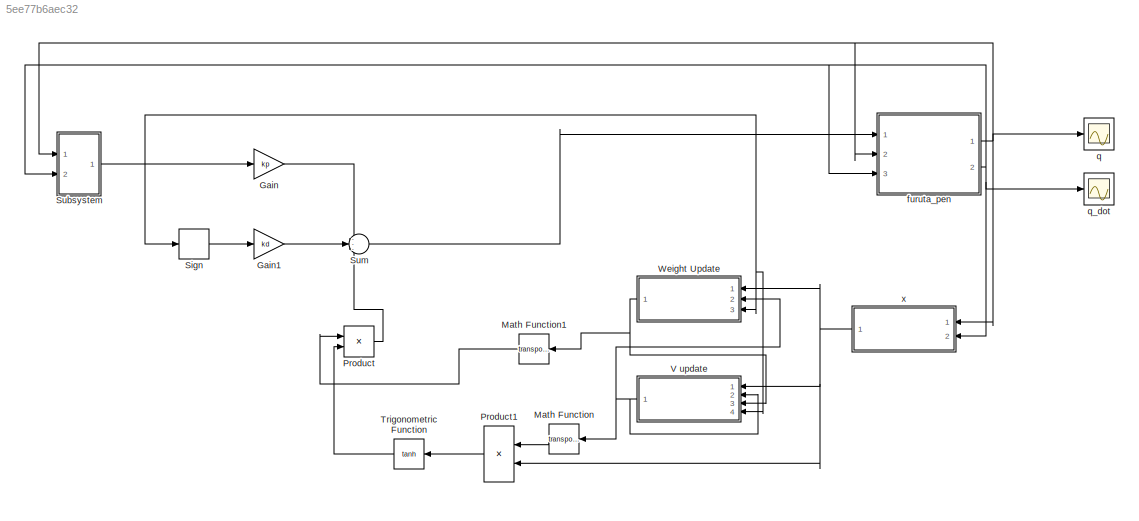
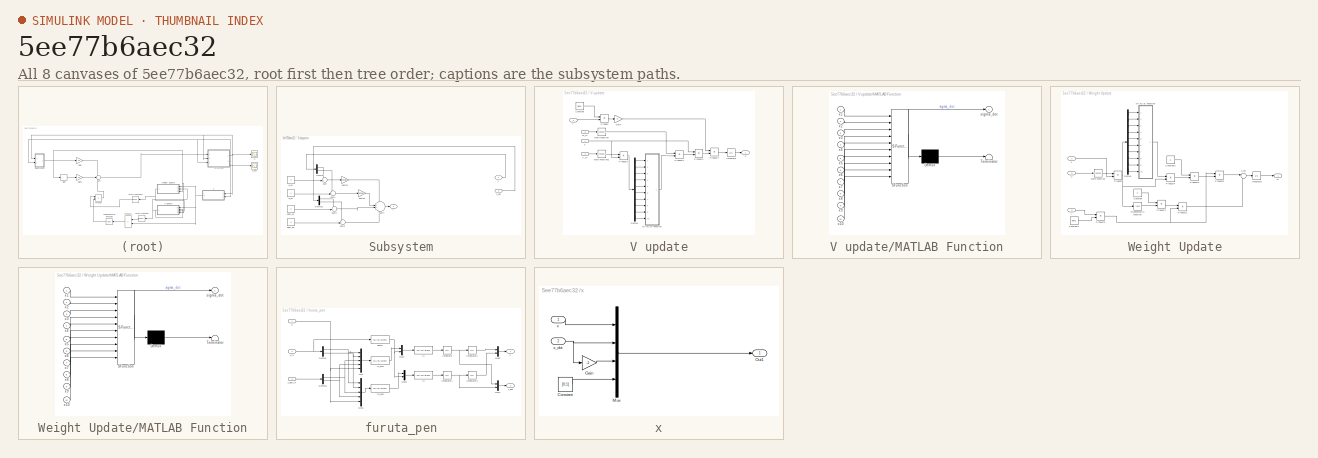
[diagram: thumbnail index - all 8 canvases of the model, root first then tree order]
MODEL slx_5ee77b6aec32
KIND model
CONFIG AbsTol = auto
CONFIG FixedStep = auto
CONFIG MaxStep = auto
CONFIG MinStep = auto
CONFIG RelTol = 1e-3
CONFIG SampleTimeConstraint = Unconstrained
CONFIG Solver = ode45
CONFIG SolverMode = Auto
CONFIG SolverName = ode45
CONFIG StartTime = 0.0
CONFIG StopTime = 10.0
BLOCK [Gain] Gain
  Gain = kp
  OutDataTypeStr = Inherit: Inherit via internal rule
  ParamDataTypeStr = Inherit: Inherit via internal rule
  SaturateOnIntegerOverflow = off
BLOCK [Gain] Gain1
  Gain = kd
  OutDataTypeStr = Inherit: Inherit via internal rule
  ParamDataTypeStr = Inherit: Inherit via internal rule
  SaturateOnIntegerOverflow = off
BLOCK [Math] Math Function
  Operator = transpose
  Ports = [1, 1]
BLOCK [Math] Math Function1
  Operator = transpose
  Ports = [1, 1]
BLOCK [Product] Product
  InputSameDT = off
  Multiplication = Matrix(*)
  OutDataTypeStr = Inherit: Inherit via internal rule
  Ports = [2, 1]
  RndMeth = Floor
  SaturateOnIntegerOverflow = off
BLOCK [Product] Product1
  InputSameDT = off
  Multiplication = Matrix(*)
  OutDataTypeStr = Inherit: Inherit via internal rule
  Ports = [2, 1]
  RndMeth = Floor
  SaturateOnIntegerOverflow = off
BLOCK [Signum] Sign
BLOCK [SubSystem] Subsystem
  Ports = [2, 1]
  RequestExecContextInheritance = off
BLOCK [Demux] Subsystem/Demux
  DisplayOption = bar
  Outputs = 2
  Ports = [1, 2]
BLOCK [Demux] Subsystem/Demux1
  DisplayOption = bar
  Outputs = 2
  Ports = [1, 2]
BLOCK [Sum] Subsystem/Sum
  IconShape = round
  InputSameDT = off
  Inputs = -+|
  OutDataTypeStr = Inherit: Inherit via internal rule
  Ports = [2, 1]
  SaturateOnIntegerOverflow = off
BLOCK [Sum] Subsystem/Sum1
  IconShape = round
  InputSameDT = off
  Inputs = -+|
  OutDataTypeStr = Inherit: Inherit via internal rule
  Ports = [2, 1]
  SaturateOnIntegerOverflow = off
BLOCK [Sum] Subsystem/Sum2
  IconShape = round
  InputSameDT = off
  Inputs = -+|
  OutDataTypeStr = Inherit: Inherit via internal rule
  Ports = [2, 1]
  SaturateOnIntegerOverflow = off
BLOCK [Sum] Subsystem/Sum3
  IconShape = round
  InputSameDT = off
  Inputs = -+|
  OutDataTypeStr = Inherit: Inherit via internal rule
  Ports = [2, 1]
  SaturateOnIntegerOverflow = off
BLOCK [Sum] Subsystem/Sum4
  IconShape = round
  InputSameDT = off
  Inputs = ++++
  OutDataTypeStr = Inherit: Inherit via internal rule
  Ports = [4, 1]
  SaturateOnIntegerOverflow = off
BLOCK [Gain] Subsystem/denta1
  Gain = denta1
  OutDataTypeStr = Inherit: Inherit via internal rule
  ParamDataTypeStr = Inherit: Inherit via internal rule
  SaturateOnIntegerOverflow = off
BLOCK [Gain] Subsystem/denta2
  Gain = denta2
  OutDataTypeStr = Inherit: Inherit via internal rule
  ParamDataTypeStr = Inherit: Inherit via internal rule
  SaturateOnIntegerOverflow = off
BLOCK [Constant] Subsystem/q_d1
  Value = 0
BLOCK [Constant] Subsystem/q_d2
  Value = 0
BLOCK [Constant] Subsystem/qdot_d1
  Value = 0
BLOCK [Constant] Subsystem/qdot_d2
  Value = 0
BLOCK [Inport] Subsystem/x
  IconDisplay = Port number
BLOCK [Inport] Subsystem/x_dot
  IconDisplay = Port number
  Port = 2
BLOCK [Outport] Subsystem/y
  IconDisplay = Port number
BLOCK [Sum] Sum
  IconShape = round
  InputSameDT = off
  Inputs = ---
  OutDataTypeStr = Inherit: Inherit via internal rule
  Ports = [3, 1]
  SaturateOnIntegerOverflow = off
BLOCK [Trigonometry] Trigonometric Function
  Operator = tanh
  Ports = [1, 1]
BLOCK [SubSystem] V update
  Ports = [4, 1]
  RequestExecContextInheritance = off
BLOCK [Constant] V update/Constant
  Value = alpha
BLOCK [Demux] V update/Demux
  DisplayOption = bar
  Outputs = 10
  Ports = [1, 10]
BLOCK [Gain] V update/Gain
  Gain = R
  OutDataTypeStr = Inherit: Inherit via internal rule
  ParamDataTypeStr = Inherit: Inherit via internal rule
  SaturateOnIntegerOverflow = off
BLOCK [Integrator] V update/Integrator
  InitialCondition = Vhat_0
  Ports = [1, 1]
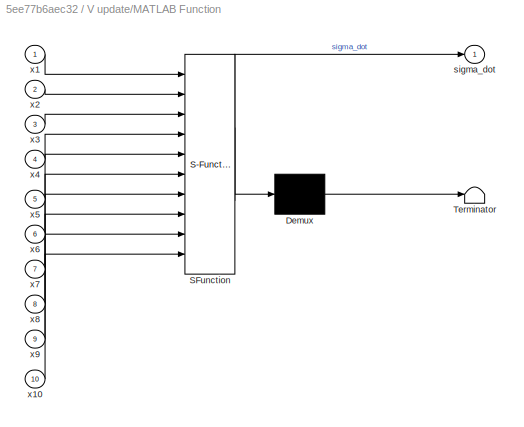
BLOCK [SubSystem] V update/MATLAB Function
  ErrorFcn = Stateflow.Translate.translate
  PermitHierarchicalResolution = ExplicitOnly
  Ports = [10, 1]
  RequestExecContextInheritance = off
  SFBlockType = MATLAB Function
  TreatAsAtomicUnit = on
BLOCK [Demux] V update/MATLAB Function/ Demux 
  Outputs = 1
  Ports = [1, 1]
BLOCK [S-Function] V update/MATLAB Function/ SFunction 
  EnableBusSupport = on
  FunctionName = sf_sfun
  PortCounts = [10 2]
  Ports = [10, 2]
  Tag = Stateflow S-Function ANN 2
BLOCK [Terminator] V update/MATLAB Function/ Terminator 
BLOCK [Outport] V update/MATLAB Function/sigma_dot
  IconDisplay = Port number
BLOCK [Inport] V update/MATLAB Function/x1
  IconDisplay = Port number
BLOCK [Inport] V update/MATLAB Function/x10
  IconDisplay = Port number
  Port = 10
BLOCK [Inport] V update/MATLAB Function/x2
  IconDisplay = Port number
  Port = 2
BLOCK [Inport] V update/MATLAB Function/x3
  IconDisplay = Port number
  Port = 3
BLOCK [Inport] V update/MATLAB Function/x4
  IconDisplay = Port number
  Port = 4
BLOCK [Inport] V update/MATLAB Function/x5
  IconDisplay = Port number
  Port = 5
BLOCK [Inport] V update/MATLAB Function/x6
  IconDisplay = Port number
  Port = 6
BLOCK [Inport] V update/MATLAB Function/x7
  IconDisplay = Port number
  Port = 7
BLOCK [Inport] V update/MATLAB Function/x8
  IconDisplay = Port number
  Port = 8
BLOCK [Inport] V update/MATLAB Function/x9
  IconDisplay = Port number
  Port = 9
BLOCK [Math] V update/Math Function
  Operator = transpose
  Ports = [1, 1]
BLOCK [Math] V update/Math Function1
  Operator = transpose
  Ports = [1, 1]
BLOCK [Product] V update/Product
  InputSameDT = off
  OutDataTypeStr = Inherit: Inherit via internal rule
  Ports = [2, 1]
  RndMeth = Floor
  SaturateOnIntegerOverflow = off
BLOCK [Product] V update/Product1
  InputSameDT = off
  Multiplication = Matrix(*)
  OutDataTypeStr = Inherit: Inherit via internal rule
  Ports = [2, 1]
  RndMeth = Floor
  SaturateOnIntegerOverflow = off
BLOCK [Product] V update/Product2
  InputSameDT = off
  Multiplication = Matrix(*)
  OutDataTypeStr = Inherit: Inherit via internal rule
  Ports = [2, 1]
  RndMeth = Floor
  SaturateOnIntegerOverflow = off
BLOCK [Product] V update/Product3
  InputSameDT = off
  Multiplication = Matrix(*)
  OutDataTypeStr = Inherit: Inherit via internal rule
  Ports = [2, 1]
  RndMeth = Floor
  SaturateOnIntegerOverflow = off
BLOCK [Product] V update/Product4
  InputSameDT = off
  Multiplication = Matrix(*)
  OutDataTypeStr = Inherit: Inherit via internal rule
  Ports = [2, 1]
  RndMeth = Floor
  SaturateOnIntegerOverflow = off
BLOCK [Outport] V update/V
  IconDisplay = Port number
BLOCK [Inport] V update/V_in
  IconDisplay = Port number
  Port = 2
BLOCK [Inport] V update/W_in
  IconDisplay = Port number
  Port = 3
BLOCK [Inport] V update/x
  IconDisplay = Port number
BLOCK [Inport] V update/y
  IconDisplay = Port number
  Port = 4
BLOCK [SubSystem] Weight Update
  Ports = [3, 1]
  RequestExecContextInheritance = off
BLOCK [Constant] Weight Update/Constant
  Value = N
BLOCK [Constant] Weight Update/Constant1
  Value = alpha
BLOCK [Constant] Weight Update/Constant2
  Value = N
BLOCK [Demux] Weight Update/Demux
  DisplayOption = bar
  Outputs = 10
  Ports = [1, 10]
BLOCK [Integrator] Weight Update/Integrator
  InitialCondition = W0
  Ports = [1, 1]
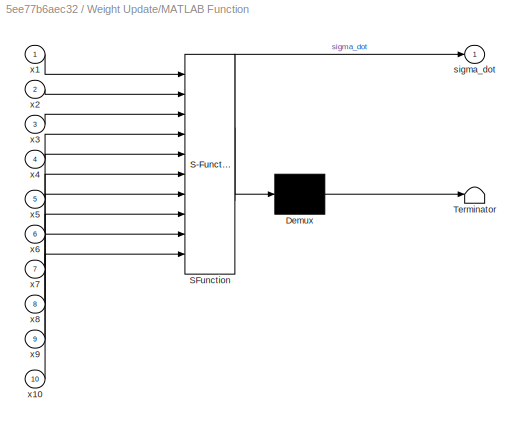
BLOCK [SubSystem] Weight Update/MATLAB Function
  ErrorFcn = Stateflow.Translate.translate
  PermitHierarchicalResolution = ExplicitOnly
  Ports = [10, 1]
  RequestExecContextInheritance = off
  SFBlockType = MATLAB Function
  TreatAsAtomicUnit = on
BLOCK [Demux] Weight Update/MATLAB Function/ Demux 
  Outputs = 1
  Ports = [1, 1]
BLOCK [S-Function] Weight Update/MATLAB Function/ SFunction 
  EnableBusSupport = on
  FunctionName = sf_sfun
  PortCounts = [10 2]
  Ports = [10, 2]
  Tag = Stateflow S-Function ANN 1
BLOCK [Terminator] Weight Update/MATLAB Function/ Terminator 
BLOCK [Outport] Weight Update/MATLAB Function/sigma_dot
  IconDisplay = Port number
BLOCK [Inport] Weight Update/MATLAB Function/x1
  IconDisplay = Port number
BLOCK [Inport] Weight Update/MATLAB Function/x10
  IconDisplay = Port number
  Port = 10
BLOCK [Inport] Weight Update/MATLAB Function/x2
  IconDisplay = Port number
  Port = 2
BLOCK [Inport] Weight Update/MATLAB Function/x3
  IconDisplay = Port number
  Port = 3
BLOCK [Inport] Weight Update/MATLAB Function/x4
  IconDisplay = Port number
  Port = 4
BLOCK [Inport] Weight Update/MATLAB Function/x5
  IconDisplay = Port number
  Port = 5
BLOCK [Inport] Weight Update/MATLAB Function/x6
  IconDisplay = Port number
  Port = 6
BLOCK [Inport] Weight Update/MATLAB Function/x7
  IconDisplay = Port number
  Port = 7
BLOCK [Inport] Weight Update/MATLAB Function/x8
  IconDisplay = Port number
  Port = 8
BLOCK [Inport] Weight Update/MATLAB Function/x9
  IconDisplay = Port number
  Port = 9
BLOCK [Math] Weight Update/Math Function
  Operator = transpose
  Ports = [1, 1]
BLOCK [Product] Weight Update/Product
  InputSameDT = off
  Multiplication = Matrix(*)
  OutDataTypeStr = Inherit: Inherit via internal rule
  Ports = [2, 1]
  RndMeth = Floor
  SaturateOnIntegerOverflow = off
BLOCK [Product] Weight Update/Product1
  InputSameDT = off
  Multiplication = Matrix(*)
  OutDataTypeStr = Inherit: Inherit via internal rule
  Ports = [2, 1]
  RndMeth = Floor
  SaturateOnIntegerOverflow = off
BLOCK [Product] Weight Update/Product2
  InputSameDT = off
  OutDataTypeStr = Inherit: Inherit via internal rule
  Ports = [2, 1]
  RndMeth = Floor
  SaturateOnIntegerOverflow = off
BLOCK [Product] Weight Update/Product3
  InputSameDT = off
  OutDataTypeStr = Inherit: Inherit via internal rule
  Ports = [2, 1]
  RndMeth = Floor
  SaturateOnIntegerOverflow = off
BLOCK [Product] Weight Update/Product4
  InputSameDT = off
  Multiplication = Matrix(*)
  OutDataTypeStr = Inherit: Inherit via internal rule
  Ports = [2, 1]
  RndMeth = Floor
  SaturateOnIntegerOverflow = off
BLOCK [Product] Weight Update/Product5
  InputSameDT = off
  Multiplication = Matrix(*)
  OutDataTypeStr = Inherit: Inherit via internal rule
  Ports = [2, 1]
  RndMeth = Floor
  SaturateOnIntegerOverflow = off
BLOCK [Product] Weight Update/Product6
  InputSameDT = off
  OutDataTypeStr = Inherit: Inherit via internal rule
  Ports = [2, 1]
  RndMeth = Floor
  SaturateOnIntegerOverflow = off
BLOCK [Sum] Weight Update/Sum
  IconShape = round
  InputSameDT = off
  Inputs = |-+
  OutDataTypeStr = Inherit: Inherit via internal rule
  Ports = [2, 1]
  SaturateOnIntegerOverflow = off
BLOCK [Trigonometry] Weight Update/Trigonometric Function
  Operator = tanh
  Ports = [1, 1]
BLOCK [Inport] Weight Update/V
  IconDisplay = Port number
  Port = 2
BLOCK [Outport] Weight Update/W
  IconDisplay = Port number
BLOCK [Inport] Weight Update/x
  IconDisplay = Port number
BLOCK [Inport] Weight Update/y
  IconDisplay = Port number
  Port = 3
BLOCK [SubSystem] furuta_pen
  Ports = [3, 2]
  RequestExecContextInheritance = off
BLOCK [Demux] furuta_pen/Demux
  DisplayOption = bar
  Outputs = 2
  Ports = [1, 2]
BLOCK [Demux] furuta_pen/Demux1
  DisplayOption = bar
  Outputs = 2
  Ports = [1, 2]
BLOCK [Integrator] furuta_pen/Integrator
  Ports = [1, 1]
BLOCK [Integrator] furuta_pen/Integrator1
  Ports = [1, 1]
BLOCK [Integrator] furuta_pen/Integrator2
  InitialCondition = theta_0*pi/180
  Ports = [1, 1]
BLOCK [Integrator] furuta_pen/Integrator3
  InitialCondition = anpha_0/180*pi
  Ports = [1, 1]
BLOCK [Mux] furuta_pen/Mux
  DisplayOption = bar
  Inputs = 5
  Ports = [5, 1]
BLOCK [Mux] furuta_pen/Mux1
  DisplayOption = bar
  Inputs = 5
  Ports = [5, 1]
BLOCK [Mux] furuta_pen/Mux2
  DisplayOption = bar
  Inputs = 2
  Ports = [2, 1]
BLOCK [Mux] furuta_pen/Mux3
  DisplayOption = bar
  Inputs = 2
  Ports = [2, 1]
BLOCK [Mux] furuta_pen/Mux4
  DisplayOption = bar
  Inputs = 2
  Ports = [2, 1]
BLOCK [Mux] furuta_pen/Mux5
  DisplayOption = bar
  Inputs = 2
  Ports = [2, 1]
BLOCK [Inport] furuta_pen/U
  IconDisplay = Port number
BLOCK [MATLABFcn] furuta_pen/denta
  MATLABFcn = J0*J1+m1^2*L1^4*sin(u(2))^2+m1^2*L0^2*L1^2+J0*m1*L1^2+J1*m1*L0^2+J1*m1*L1^2*sin(u(2))^2-m1^2*L0^2*L1^2*cos(u(2))^2
  Ports = [1, 1]
BLOCK [MATLABFcn] furuta_pen/f1
  MATLABFcn = u(1)/u(2)
  Ports = [1, 1]
BLOCK [MATLABFcn] furuta_pen/f1_num
  MATLABFcn = m1*L0*L1*cos(u(2))*(0.5*m1*L1^2*sin(2*u(2))*u(3)^2+m1*g*L1*sin(u(2))-beta1*u(4))-(m1*L1^2+J1)*(m1*L1^2*sin(2*u(2))*u(3)*u(4)+m1*L0*L1*sin(u(2))*u(4)^2-u(5)+beta0*u(3))
  Ports = [1, 1]
BLOCK [MATLABFcn] furuta_pen/f2
  MATLABFcn = u(1)/u(2)
  Ports = [1, 1]
BLOCK [MATLABFcn] furuta_pen/f2_num
  MATLABFcn = (m1*L0^2+m1*L1^2*sin(u(2))^2+J0)*(0.5*m1*L1^2*sin(2*u(2))*u(3)^2+m1*g*L1*sin(u(2))-beta1*u(4))-m1*L0*L1*cos(u(2))*(m1*L1^2*sin(2*u(2))*u(3)*u(4)+m1*L0*L1*sin(u(2))*u(4)^2-u(5)+beta0*u(3))
  Ports = [1, 1]
BLOCK [Outport] furuta_pen/x
  IconDisplay = Port number
BLOCK [Outport] furuta_pen/x_dot
  IconDisplay = Port number
  Port = 2
BLOCK [Inport] furuta_pen/x_dot_in
  IconDisplay = Port number
  Port = 3
BLOCK [Inport] furuta_pen/x_in
  IconDisplay = Port number
  Port = 2
BLOCK [Scope] q
  Floating = off
  NumInputPorts = 1
  Ports = [1]
  YMax = 1750
  YMin = 0
BLOCK [Scope] q_dot
  Floating = off
  NumInputPorts = 1
  Ports = [1]
  SaveName = ScopeData1
BLOCK [SubSystem] x
  Ports = [2, 1]
  RequestExecContextInheritance = off
BLOCK [Constant] x/Constant
  Value = [0;1]
BLOCK [Gain] x/Gain
  Gain = -1
  OutDataTypeStr = Inherit: Inherit via internal rule
  ParamDataTypeStr = Inherit: Inherit via internal rule
  SaturateOnIntegerOverflow = off
BLOCK [Mux] x/Mux
  DisplayOption = bar
  Ports = [4, 1]
BLOCK [Outport] x/Out1
  IconDisplay = Port number
BLOCK [Inport] x/x
  IconDisplay = Port number
BLOCK [Inport] x/x_dot
  IconDisplay = Port number
  Port = 2
LINE Gain1:1 -> Sum:2
LINE Gain:1 -> Sum:1
LINE Math Function1:1 -> Product:1
LINE Math Function:1 -> Product1:1
LINE Product1:1 -> Trigonometric Function:1
LINE Product:1 -> Sum:3
LINE Sign:1 -> Gain1:1
LINE Subsystem/Demux1:1 -> Subsystem/Sum2:1
LINE Subsystem/Demux1:2 -> Subsystem/Sum3:1
LINE Subsystem/Demux:1 -> Subsystem/Sum:1
LINE Subsystem/Demux:2 -> Subsystem/Sum1:1
LINE Subsystem/Sum1:1 -> Subsystem/denta2:1
LINE Subsystem/Sum2:1 -> Subsystem/Sum4:3
LINE Subsystem/Sum3:1 -> Subsystem/Sum4:4
LINE Subsystem/Sum4:1 -> Subsystem/y:1
LINE Subsystem/Sum:1 -> Subsystem/denta1:1
LINE Subsystem/denta1:1 -> Subsystem/Sum4:1
LINE Subsystem/denta2:1 -> Subsystem/Sum4:2
LINE Subsystem/q_d1:1 -> Subsystem/Sum:2
LINE Subsystem/q_d2:1 -> Subsystem/Sum1:2
LINE Subsystem/qdot_d1:1 -> Subsystem/Sum2:2
LINE Subsystem/qdot_d2:1 -> Subsystem/Sum3:2
LINE Subsystem/x:1 -> Subsystem/Demux:1
LINE Subsystem/x_dot:1 -> Subsystem/Demux1:1
NET Subsystem:1 -> Gain:1, Sign:1, V update:4, Weight Update:3
LINE Sum:1 -> furuta_pen:1
LINE Trigonometric Function:1 -> Product:2
LINE V update/Constant:1 -> V update/Product:1
LINE V update/Demux:1 -> V update/MATLAB Function:1
LINE V update/Demux:10 -> V update/MATLAB Function:10
LINE V update/Demux:2 -> V update/MATLAB Function:2
LINE V update/Demux:3 -> V update/MATLAB Function:3
LINE V update/Demux:4 -> V update/MATLAB Function:4
LINE V update/Demux:5 -> V update/MATLAB Function:5
LINE V update/Demux:6 -> V update/MATLAB Function:6
LINE V update/Demux:7 -> V update/MATLAB Function:7
LINE V update/Demux:8 -> V update/MATLAB Function:8
LINE V update/Demux:9 -> V update/MATLAB Function:9
LINE V update/Gain:1 -> V update/Product4:1
LINE V update/Integrator:1 -> V update/V:1
LINE V update/MATLAB Function:1 -> V update/Product2:2
LINE V update/Math Function1:1 -> V update/Product1:1
LINE V update/Math Function:1 -> V update/Product2:1
LINE V update/Product1:1 -> V update/Demux:1
LINE V update/Product2:1 -> V update/Product3:2
LINE V update/Product3:1 -> V update/Product4:2
LINE V update/Product4:1 -> V update/Integrator:1
LINE V update/Product:1 -> V update/Gain:1
LINE V update/V_in:1 -> V update/Math Function1:1
LINE V update/W_in:1 -> V update/Math Function:1
NET V update/x:1 -> V update/Product1:2, V update/Product3:1
LINE V update/y:1 -> V update/Product:2
NET V update:1 -> Math Function:1, V update:2, Weight Update:2
LINE Weight Update/Constant1:1 -> Weight Update/Product3:2
LINE Weight Update/Constant2:1 -> Weight Update/Product5:1
LINE Weight Update/Constant:1 -> Weight Update/Product1:1
LINE Weight Update/Demux:1 -> Weight Update/MATLAB Function:1
LINE Weight Update/Demux:10 -> Weight Update/MATLAB Function:10
LINE Weight Update/Demux:2 -> Weight Update/MATLAB Function:2
LINE Weight Update/Demux:3 -> Weight Update/MATLAB Function:3
LINE Weight Update/Demux:4 -> Weight Update/MATLAB Function:4
LINE Weight Update/Demux:5 -> Weight Update/MATLAB Function:5
LINE Weight Update/Demux:6 -> Weight Update/MATLAB Function:6
LINE Weight Update/Demux:7 -> Weight Update/MATLAB Function:7
LINE Weight Update/Demux:8 -> Weight Update/MATLAB Function:8
LINE Weight Update/Demux:9 -> Weight Update/MATLAB Function:9
LINE Weight Update/Integrator:1 -> Weight Update/W:1
LINE Weight Update/MATLAB Function:1 -> Weight Update/Product4:1
LINE Weight Update/Math Function:1 -> Weight Update/Product:1
LINE Weight Update/Product1:1 -> Weight Update/Product2:1
LINE Weight Update/Product2:1 -> Weight Update/Sum:2
NET Weight Update/Product3:1 -> Weight Update/Product2:2, Weight Update/Product6:1
LINE Weight Update/Product4:1 -> Weight Update/Product5:2
LINE Weight Update/Product5:1 -> Weight Update/Product6:2
LINE Weight Update/Product6:1 -> Weight Update/Sum:1
NET Weight Update/Product:1 -> Weight Update/Demux:1, Weight Update/Product4:2, Weight Update/Trigonometric Function:1
LINE Weight Update/Sum:1 -> Weight Update/Integrator:1
LINE Weight Update/Trigonometric Function:1 -> Weight Update/Product1:2
LINE Weight Update/V:1 -> Weight Update/Math Function:1
LINE Weight Update/x:1 -> Weight Update/Product:2
LINE Weight Update/y:1 -> Weight Update/Product3:1
NET Weight Update:1 -> Math Function1:1, V update:3
NET furuta_pen/Demux1:1 -> furuta_pen/Mux1:3, furuta_pen/Mux:3
NET furuta_pen/Demux1:2 -> furuta_pen/Mux1:4, furuta_pen/Mux:4
NET furuta_pen/Demux:1 -> furuta_pen/Mux1:1, furuta_pen/Mux:1
NET furuta_pen/Demux:2 -> furuta_pen/Mux1:2, furuta_pen/Mux:2
NET furuta_pen/Integrator1:1 -> furuta_pen/Integrator3:1, furuta_pen/Mux4:2
LINE furuta_pen/Integrator2:1 -> furuta_pen/Mux5:1
LINE furuta_pen/Integrator3:1 -> furuta_pen/Mux5:2
NET furuta_pen/Integrator:1 -> furuta_pen/Integrator2:1, furuta_pen/Mux4:1
LINE furuta_pen/Mux1:1 -> furuta_pen/f2_num:1
LINE furuta_pen/Mux2:1 -> furuta_pen/f1:1
LINE furuta_pen/Mux3:1 -> furuta_pen/f2:1
LINE furuta_pen/Mux4:1 -> furuta_pen/x_dot:1
LINE furuta_pen/Mux5:1 -> furuta_pen/x:1
LINE furuta_pen/Mux:1 -> furuta_pen/f1_num:1
NET furuta_pen/U:1 -> furuta_pen/Mux1:5, furuta_pen/Mux:5
NET furuta_pen/denta:1 -> furuta_pen/Mux2:2, furuta_pen/Mux3:2
LINE furuta_pen/f1:1 -> furuta_pen/Integrator:1
LINE furuta_pen/f1_num:1 -> furuta_pen/Mux2:1
LINE furuta_pen/f2:1 -> furuta_pen/Integrator1:1
LINE furuta_pen/f2_num:1 -> furuta_pen/Mux3:1
LINE furuta_pen/x_dot_in:1 -> furuta_pen/Demux1:1
NET furuta_pen/x_in:1 -> furuta_pen/Demux:1, furuta_pen/denta:1
NET furuta_pen:1 -> Subsystem:1, furuta_pen:2, q:1, x:1
NET furuta_pen:2 -> Subsystem:2, furuta_pen:3, q_dot:1, x:2
LINE x/Constant:1 -> x/Mux:4
LINE x/Gain:1 -> x/Mux:3
LINE x/Mux:1 -> x/Out1:1
LINE x/x:1 -> x/Mux:1
NET x/x_dot:1 -> x/Gain:1, x/Mux:2
NET x:1 -> Product1:2, V update:1, Weight Update:1
note: NET lines group one-source signal fan-out (src -> all destinations, sorted); 1:1 wires keep LINE
CHART Weight Update/MATLAB Function states=1 transitions=1
  STATE_LABEL 'eML_blk_kernel()'
  STATE_LABEL 'SCRIPT:\nfunction sigma_dot = fcn(x1,x2,x3,x4,x5,x6,x7,x8,x9,x10)\n%#codegen\n%x1=x(1);\n%x2=x(2);\n%x3=x(3);\n%x4=x(4);\n%x5=x(5);\n%x6=x(6);\n%x7=x(7);\n%x8=x(8);\n%x9=x(9);\n%x10=x(10);\nsigma_dot = [1-tanh(x1)^2,0,0,0,0,0,0,0,0,0;\n    0,1-tanh(x2)^2,0,0,0,0,0,0,0,0;\n    0,0,1-tanh(x3)^2,0,0,0,0,0,0,0;\n    0,0,0,1-tanh(x4)^2,0,0,0,0,0,0;\n    0,0,0,0,1-tanh(x5)^2,0,0,0,0,0;\n    0,0,0,0,0,1-tanh(x6)^2,0,0,0,0...<+147ch>'
CHART V update/MATLAB Function states=1 transitions=1
  STATE_LABEL 'eML_blk_kernel()'
  STATE_LABEL 'SCRIPT:\nfunction sigma_dot = fcn(x1,x2,x3,x4,x5,x6,x7,x8,x9,x10)\n%#codegen\n%x1=x(1);\n%x2=x(2);\n%x3=x(3);\n%x4=x(4);\n%x5=x(5);\n%x6=x(6);\n%x7=x(7);\n%x8=x(8);\n%x9=x(9);\n%x10=x(10);\nsigma_dot = [1-tanh(x1)^2,0,0,0,0,0,0,0,0,0;\n    0,1-tanh(x2)^2,0,0,0,0,0,0,0,0;\n    0,0,1-tanh(x3)^2,0,0,0,0,0,0,0;\n    0,0,0,1-tanh(x4)^2,0,0,0,0,0,0;\n    0,0,0,0,1-tanh(x5)^2,0,0,0,0,0;\n    0,0,0,0,0,1-tanh(x6)^2,0,0,0,0...<+147ch>'
